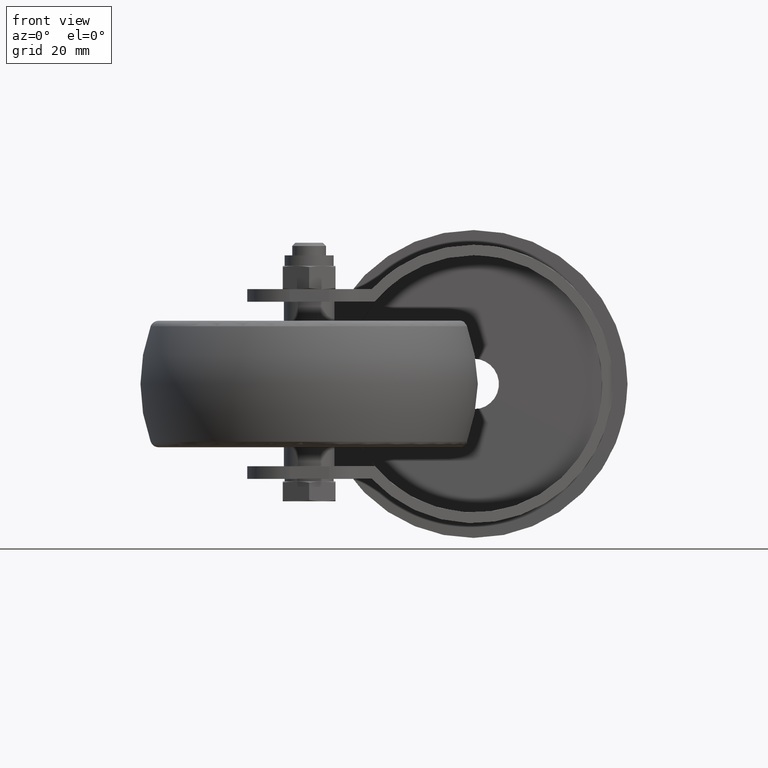
[diagram: clean part render]
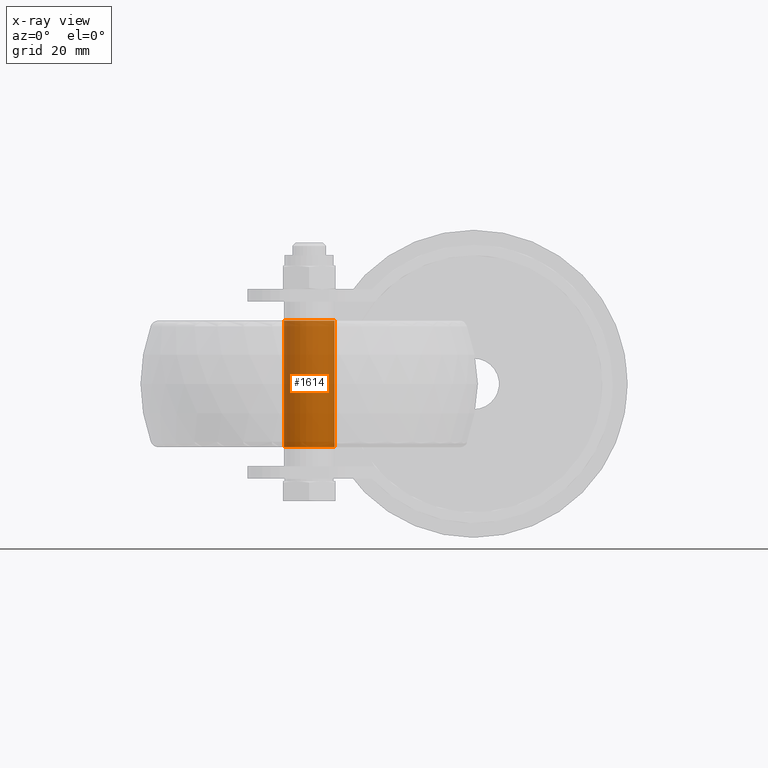
[diagram: x-ray — body ghosted, one internal face saturated and labeled with its STEP entity id]
A machine part, front view, then the same camera in x-ray: the body is ghosted and one INTERNAL B-rep face — a face not visible from any outside direction — is saturated and labeled: STEP entity #1614.
In plain terms, the highlighted cylindrical surface (bore or boss wall) has radius 6 mm, axis along (0, 0, 1).
Its self-contained STEP definition (entity closure, byte-faithful):
#295=FACE_OUTER_BOUND('',#417,.T.);
#417=EDGE_LOOP('',(#1418,#1419,#1420,#1421));
#510=CIRCLE('',#1906,6.);
#511=CIRCLE('',#1907,6.);
#615=LINE('',#2965,#683);
#683=VECTOR('',#2354,6.);
#801=VERTEX_POINT('',#2962);
#802=VERTEX_POINT('',#2964);
#1010=EDGE_CURVE('',#801,#801,#510,.T.);
#1011=EDGE_CURVE('',#801,#802,#615,.T.);
#1012=EDGE_CURVE('',#802,#802,#511,.T.);
#1418=ORIENTED_EDGE('',*,*,#1010,.F.);
#1419=ORIENTED_EDGE('',*,*,#1011,.T.);
#1420=ORIENTED_EDGE('',*,*,#1012,.T.);
#1421=ORIENTED_EDGE('',*,*,#1011,.F.);
#1529=CYLINDRICAL_SURFACE('',#1905,6.);
#1614=ADVANCED_FACE('',(#295),#1529,.F.);
#1905=AXIS2_PLACEMENT_3D('',#2961,#2350,#2351);
#1906=AXIS2_PLACEMENT_3D('',#2963,#2352,#2353);
#1907=AXIS2_PLACEMENT_3D('',#2966,#2355,#2356);
#2350=DIRECTION('center_axis',(0.,0.,1.));
#2351=DIRECTION('ref_axis',(1.,0.,0.));
#2352=DIRECTION('center_axis',(0.,0.,1.));
#2353=DIRECTION('ref_axis',(1.,0.,0.));
#2354=DIRECTION('',(0.,0.,1.));
#2355=DIRECTION('center_axis',(0.,0.,1.));
#2356=DIRECTION('ref_axis',(1.,0.,0.));
#2961=CARTESIAN_POINT('Origin',(0.,0.,15.));
#2962=CARTESIAN_POINT('',(-6.,-7.34788079488412E-16,-15.));
#2963=CARTESIAN_POINT('Origin',(0.,0.,-15.));
#2964=CARTESIAN_POINT('',(-6.,-7.34788079488412E-16,15.));
#2965=CARTESIAN_POINT('',(-6.,-7.34788079488412E-16,15.));
#2966=CARTESIAN_POINT('Origin',(0.,0.,15.));